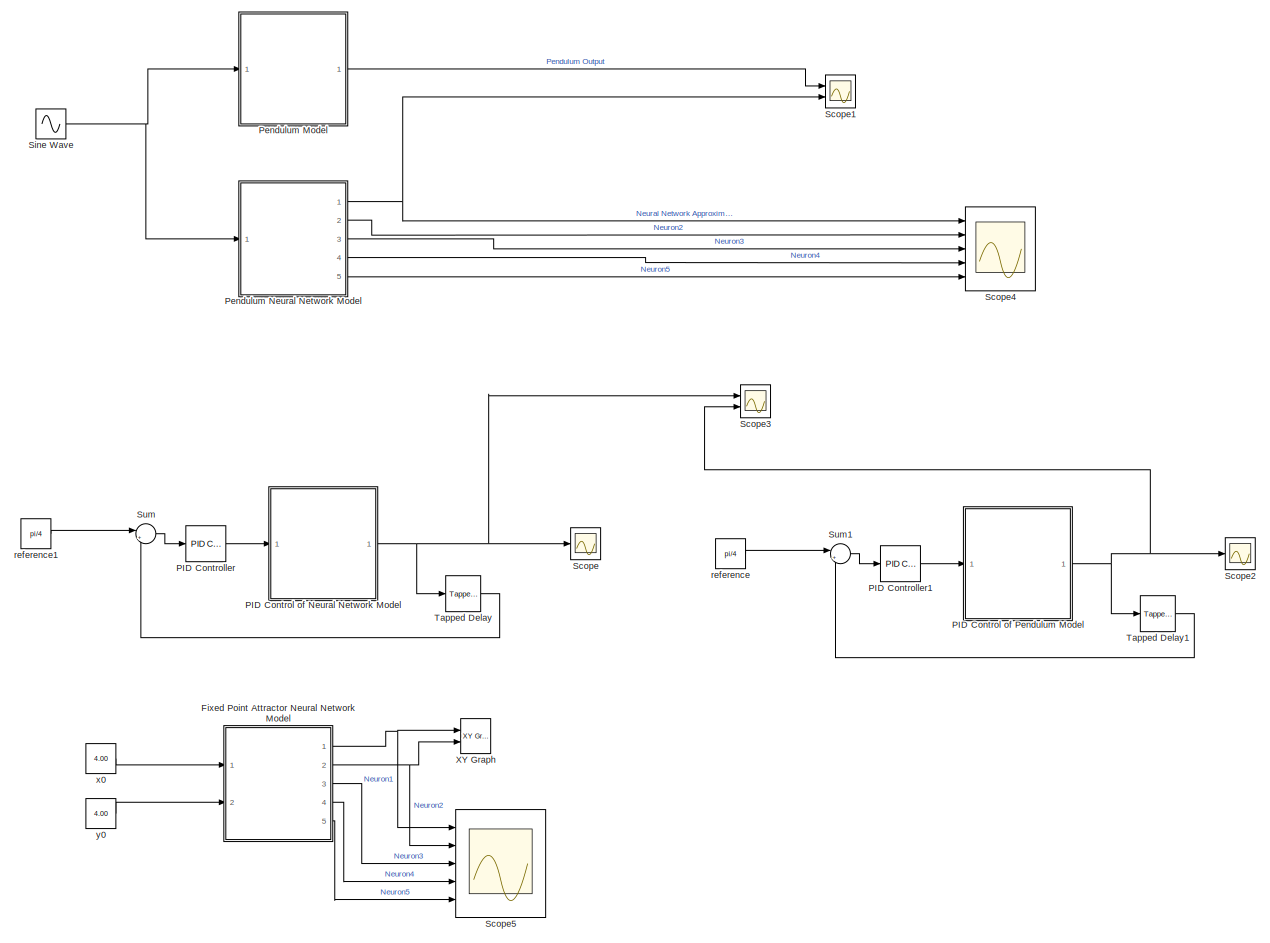
[diagram: root canvas - part 1/1, most of the canvas]
MODEL slx_5170bb41e2d5
KIND model
CONFIG AbsTol = auto
CONFIG EnableMultiTasking = off
CONFIG FixedStep = auto
CONFIG MaxStep = auto
CONFIG MinStep = auto
CONFIG RelTol = 1e-3
CONFIG SampleTimeConstraint = Unconstrained
CONFIG Solver = VariableStepAuto
CONFIG SolverName = VariableStepAuto
CONFIG StartTime = 0.0
CONFIG StopTime = 50.0
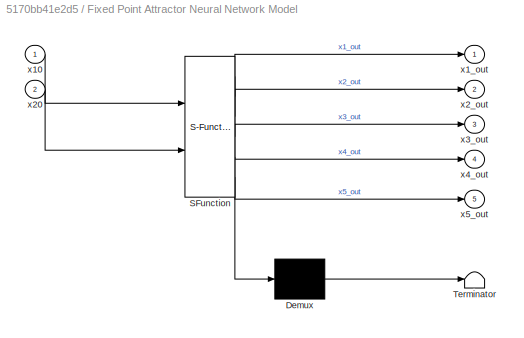
BLOCK [SubSystem] Fixed Point Attractor Neural Network Model
  ErrorFcn = Stateflow.Translate.translate
  PermitHierarchicalResolution = ExplicitOnly
  Ports = [2, 5]
  RequestExecContextInheritance = off
  SFBlockType = Chart
  TreatAsAtomicUnit = on
  Variant = off
BLOCK [Demux] Fixed Point Attractor Neural Network Model/ Demux 
  Outputs = 1
  Ports = [1, 1]
BLOCK [S-Function] Fixed Point Attractor Neural Network Model/ SFunction 
  EnableBusSupport = on
  FunctionName = sf_sfun
  PortCounts = [2 6]
  Ports = [2, 6]
  SFcnIsStateOwnerBlock = off
  SFunctionDeploymentMode = off
  Tag = Stateflow S-Function CTRNNSLSF 5
BLOCK [Terminator] Fixed Point Attractor Neural Network Model/ Terminator 
BLOCK [Inport] Fixed Point Attractor Neural Network Model/x10
  IconDisplay = Port number
BLOCK [Outport] Fixed Point Attractor Neural Network Model/x1_out
  IconDisplay = Port number
BLOCK [Inport] Fixed Point Attractor Neural Network Model/x20
  IconDisplay = Port number
  Port = 2
BLOCK [Outport] Fixed Point Attractor Neural Network Model/x2_out
  IconDisplay = Port number
  Port = 2
BLOCK [Outport] Fixed Point Attractor Neural Network Model/x3_out
  IconDisplay = Port number
  Port = 3
BLOCK [Outport] Fixed Point Attractor Neural Network Model/x4_out
  IconDisplay = Port number
  Port = 4
BLOCK [Outport] Fixed Point Attractor Neural Network Model/x5_out
  IconDisplay = Port number
  Port = 5
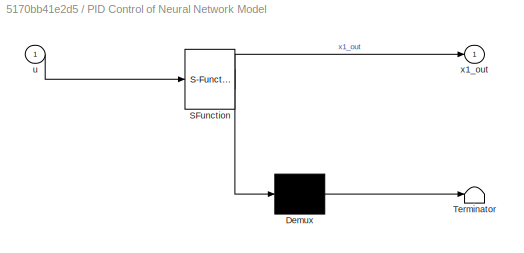
BLOCK [SubSystem] PID Control of Neural Network Model
  ErrorFcn = Stateflow.Translate.translate
  PermitHierarchicalResolution = ExplicitOnly
  Ports = [1, 1]
  RequestExecContextInheritance = off
  SFBlockType = Chart
  TreatAsAtomicUnit = on
  Variant = off
BLOCK [Demux] PID Control of Neural Network Model/ Demux 
  Outputs = 1
  Ports = [1, 1]
BLOCK [S-Function] PID Control of Neural Network Model/ SFunction 
  EnableBusSupport = on
  FunctionName = sf_sfun
  PortCounts = [1 2]
  Ports = [1, 2]
  SFcnIsStateOwnerBlock = off
  SFunctionDeploymentMode = off
  Tag = Stateflow S-Function CTRNNSLSF 3
BLOCK [Terminator] PID Control of Neural Network Model/ Terminator 
BLOCK [Inport] PID Control of Neural Network Model/u
  IconDisplay = Port number
BLOCK [Outport] PID Control of Neural Network Model/x1_out
  IconDisplay = Port number
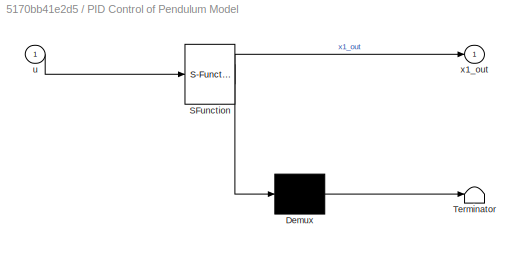
BLOCK [SubSystem] PID Control of Pendulum Model
  ErrorFcn = Stateflow.Translate.translate
  PermitHierarchicalResolution = ExplicitOnly
  Ports = [1, 1]
  RequestExecContextInheritance = off
  SFBlockType = Chart
  TreatAsAtomicUnit = on
  Variant = off
BLOCK [Demux] PID Control of Pendulum Model/ Demux 
  Outputs = 1
  Ports = [1, 1]
BLOCK [S-Function] PID Control of Pendulum Model/ SFunction 
  EnableBusSupport = on
  FunctionName = sf_sfun
  PortCounts = [1 2]
  Ports = [1, 2]
  SFcnIsStateOwnerBlock = off
  SFunctionDeploymentMode = off
  Tag = Stateflow S-Function CTRNNSLSF 4
BLOCK [Terminator] PID Control of Pendulum Model/ Terminator 
BLOCK [Inport] PID Control of Pendulum Model/u
  IconDisplay = Port number
BLOCK [Outport] PID Control of Pendulum Model/x1_out
  IconDisplay = Port number
BLOCK [Reference] PID Controller  REF=simulink/Continuous/PID Controller
  Ports = [1, 1]
  SourceBlock = simulink/Continuous/PID Controller
  SourceProductBaseCode = SL
  SourceProductName = Simulink
  SourceType = PID 1dof
BLOCK [Reference] PID Controller1  REF=simulink/Continuous/PID Controller
  Ports = [1, 1]
  SourceBlock = simulink/Continuous/PID Controller
  SourceProductBaseCode = SL
  SourceProductName = Simulink
  SourceType = PID 1dof
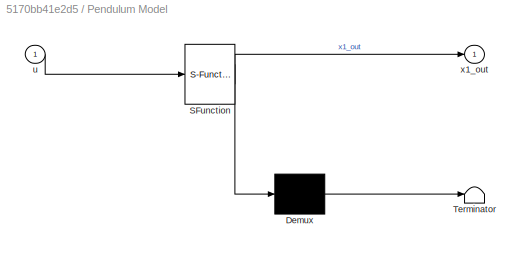
BLOCK [SubSystem] Pendulum Model
  ErrorFcn = Stateflow.Translate.translate
  PermitHierarchicalResolution = ExplicitOnly
  Ports = [1, 1]
  RequestExecContextInheritance = off
  SFBlockType = Chart
  TreatAsAtomicUnit = on
  Variant = off
BLOCK [Demux] Pendulum Model/ Demux 
  Outputs = 1
  Ports = [1, 1]
BLOCK [S-Function] Pendulum Model/ SFunction 
  EnableBusSupport = on
  FunctionName = sf_sfun
  PortCounts = [1 2]
  Ports = [1, 2]
  SFcnIsStateOwnerBlock = off
  SFunctionDeploymentMode = off
  Tag = Stateflow S-Function CTRNNSLSF 1
BLOCK [Terminator] Pendulum Model/ Terminator 
BLOCK [Inport] Pendulum Model/u
  IconDisplay = Port number
BLOCK [Outport] Pendulum Model/x1_out
  IconDisplay = Port number
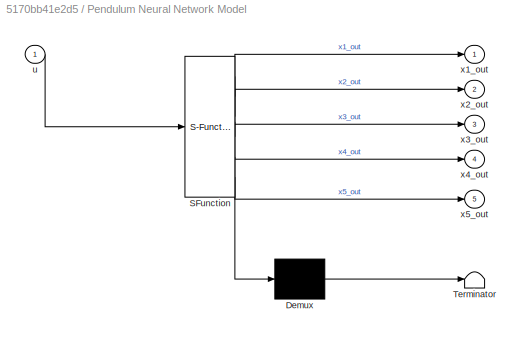
BLOCK [SubSystem] Pendulum Neural Network Model
  ErrorFcn = Stateflow.Translate.translate
  PermitHierarchicalResolution = ExplicitOnly
  Ports = [1, 5]
  RequestExecContextInheritance = off
  SFBlockType = Chart
  TreatAsAtomicUnit = on
  Variant = off
BLOCK [Demux] Pendulum Neural Network Model/ Demux 
  Outputs = 1
  Ports = [1, 1]
BLOCK [S-Function] Pendulum Neural Network Model/ SFunction 
  EnableBusSupport = on
  FunctionName = sf_sfun
  PortCounts = [1 6]
  Ports = [1, 6]
  SFcnIsStateOwnerBlock = off
  SFunctionDeploymentMode = off
  Tag = Stateflow S-Function CTRNNSLSF 2
BLOCK [Terminator] Pendulum Neural Network Model/ Terminator 
BLOCK [Inport] Pendulum Neural Network Model/u
  IconDisplay = Port number
BLOCK [Outport] Pendulum Neural Network Model/x1_out
  IconDisplay = Port number
BLOCK [Outport] Pendulum Neural Network Model/x2_out
  IconDisplay = Port number
  Port = 2
BLOCK [Outport] Pendulum Neural Network Model/x3_out
  IconDisplay = Port number
  Port = 3
BLOCK [Outport] Pendulum Neural Network Model/x4_out
  IconDisplay = Port number
  Port = 4
BLOCK [Outport] Pendulum Neural Network Model/x5_out
  IconDisplay = Port number
  Port = 5
BLOCK [Scope] Scope
  NumInputPorts = 1
  Ports = [1]
  ScopeSpecificationString = Simulink.scopes.TimeScopeBlockCfg('CurrentConfiguration', extmgr.ConfigurationSet(extmgr.Configuration('Core','General UI',true),extmgr.Configuration('Core','Source UI',true),extmgr.Configuration('Sources','WiredSimulink',true),extmgr.Configuration('Visuals','Time Domain',true,'SerializedDisplays',{struct('MinYLimReal','-0.14744','MaxYLimReal','1.22998','YLabelReal','','MinYLimMag','0.00000','MaxY...<+1341ch>
BLOCK [Scope] Scope1
  NumInputPorts = 2
  Ports = [2]
  ScopeSpecificationString = Simulink.scopes.TimeScopeBlockCfg('CurrentConfiguration', extmgr.ConfigurationSet(extmgr.Configuration('Core','General UI',true),extmgr.Configuration('Core','Source UI',true),extmgr.Configuration('Sources','WiredSimulink',true,'DataLoggingVariableName','ScopeData1'),extmgr.Configuration('Visuals','Time Domain',true,'SerializedDisplays',{struct('MinYLimReal','-0.12103','MaxYLimReal','0.12104','YLab...<+1534ch>
BLOCK [Scope] Scope2
  NumInputPorts = 1
  Ports = [1]
  ScopeSpecificationString = Simulink.scopes.TimeScopeBlockCfg('CurrentConfiguration', extmgr.ConfigurationSet(extmgr.Configuration('Core','General UI',true),extmgr.Configuration('Core','Source UI',true),extmgr.Configuration('Sources','WiredSimulink',true,'DataLoggingVariableName','ScopeData2'),extmgr.Configuration('Visuals','Time Domain',true,'SerializedDisplays',{struct('MinYLimReal','-0.11843','MaxYLimReal','1.06586','YLab...<+1403ch>
BLOCK [Scope] Scope3
  NumInputPorts = 2
  Ports = [2]
  ScopeSpecificationString = Simulink.scopes.TimeScopeBlockCfg('CurrentConfiguration', extmgr.ConfigurationSet(extmgr.Configuration('Core','General UI',true),extmgr.Configuration('Core','Source UI',true),extmgr.Configuration('Sources','WiredSimulink',true,'DataLoggingVariableName','ScopeData3'),extmgr.Configuration('Visuals','Time Domain',true,'SerializedDisplays',{struct('MinYLimReal','-0.14744','MaxYLimReal','1.22998','YLab...<+1425ch>
BLOCK [Scope] Scope4
  NumInputPorts = 5
  Ports = [5]
  ScopeSpecificationString = Simulink.scopes.TimeScopeBlockCfg('CurrentConfiguration', extmgr.ConfigurationSet(extmgr.Configuration('Core','General UI',true),extmgr.Configuration('Core','Source UI',true),extmgr.Configuration('Sources','WiredSimulink',true,'DataLoggingVariableName','ScopeData1'),extmgr.Configuration('Visuals','Time Domain',true,'SerializedDisplays',{struct('MinYLimReal','-0.18379','MaxYLimReal','0.18881','YLab...<+1505ch>
BLOCK [Scope] Scope5
  NumInputPorts = 5
  Ports = [5]
  ScopeSpecificationString = Simulink.scopes.TimeScopeBlockCfg('CurrentConfiguration', extmgr.ConfigurationSet(extmgr.Configuration('Core','General UI',true),extmgr.Configuration('Core','Source UI',true),extmgr.Configuration('Sources','WiredSimulink',true,'DataLoggingVariableName','ScopeData1'),extmgr.Configuration('Visuals','Time Domain',true,'SerializedDisplays',{struct('MinYLimReal','-6.1573','MaxYLimReal','5.61562','YLabe...<+1429ch>
BLOCK [Sin] Sine Wave
  Amplitude = pi/2
  Frequency = (2*pi)/12.5
  Ports = [0, 1]
  SampleTime = 0
BLOCK [Sum] Sum
  IconShape = round
  InputSameDT = off
  Inputs = |+-
  OutDataTypeStr = Inherit: Inherit via internal rule
  Ports = [2, 1]
  SaturateOnIntegerOverflow = off
BLOCK [Sum] Sum1
  IconShape = round
  InputSameDT = off
  Inputs = |+-
  OutDataTypeStr = Inherit: Inherit via internal rule
  Ports = [2, 1]
  SaturateOnIntegerOverflow = off
BLOCK [Reference] Tapped Delay  REF=simulink/Discrete/Tapped Delay
  Ports = [1, 1]
  SourceBlock = simulink/Discrete/Tapped Delay
  SourceProductBaseCode = SL
  SourceProductName = Simulink
  SourceType = Tapped Delay Line
BLOCK [Reference] Tapped Delay1  REF=simulink/Discrete/Tapped Delay
  Ports = [1, 1]
  SourceBlock = simulink/Discrete/Tapped Delay
  SourceProductBaseCode = SL
  SourceProductName = Simulink
  SourceType = Tapped Delay Line
BLOCK [Reference] XY Graph  REF=simulink/Sinks/XY Graph
  Ports = [2]
  SourceBlock = simulink/Sinks/XY Graph
  SourceProductBaseCode = SL
  SourceProductName = Simulink
  SourceType = XY scope.
BLOCK [Constant] reference
  Value = pi/4
BLOCK [Constant] reference1
  Value = pi/4
BLOCK [Constant] x0
  Value = 4.00
BLOCK [Constant] y0
  Value = 4.00
NET Fixed Point Attractor Neural Network Model:1 -> Scope5:1, XY Graph:1
NET Fixed Point Attractor Neural Network Model:2 -> Scope5:2, XY Graph:2
LINE Fixed Point Attractor Neural Network Model:3 -> Scope5:3
LINE Fixed Point Attractor Neural Network Model:4 -> Scope5:4
LINE Fixed Point Attractor Neural Network Model:5 -> Scope5:5
NET PID Control of Neural Network Model:1 -> Scope3:1, Scope:1, Tapped Delay:1
NET PID Control of Pendulum Model:1 -> Scope2:1, Scope3:2, Tapped Delay1:1
LINE PID Controller1:1 -> PID Control of Pendulum Model:1
LINE PID Controller:1 -> PID Control of Neural Network Model:1
LINE Pendulum Model:1 -> Scope1:1
NET Pendulum Neural Network Model:1 -> Scope1:2, Scope4:1
LINE Pendulum Neural Network Model:2 -> Scope4:2
LINE Pendulum Neural Network Model:3 -> Scope4:3
LINE Pendulum Neural Network Model:4 -> Scope4:4
LINE Pendulum Neural Network Model:5 -> Scope4:5
NET Sine Wave:1 -> Pendulum Model:1, Pendulum Neural Network Model:1
LINE Sum1:1 -> PID Controller1:1
LINE Sum:1 -> PID Controller:1
LINE Tapped Delay1:1 -> Sum1:2
LINE Tapped Delay:1 -> Sum:2
LINE reference1:1 -> Sum:1
LINE reference:1 -> Sum1:1
LINE x0:1 -> Fixed Point Attractor Neural Network Model:1
LINE y0:1 -> Fixed Point Attractor Neural Network Model:2
note: NET lines group one-source signal fan-out (src -> all destinations, sorted); 1:1 wires keep LINE
CHART Pendulum Model states=1 transitions=1
  STATE_LABEL 'Pendulum\ndu:\n  % derivatives\n  x1_dot = x2;\n  x2_dot = -9.81*x1-0.5*x2+0.5*u;\n  % outputs\n  x1_out = x1;'
CHART Pendulum Neural Network Model states=1 transitions=1
  STATE_LABEL 'DFPRNN\ndu:\n  % derivatives\n  x1_dot=-x1+0.4684*tanh(x1)-2.4995*tanh(x2) +0.4211*tanh(x3) -0.2848*tanh(x4) +0.1995*tanh(x5)+0.0050*u;\n  x2_dot=-x2+1.3615*tanh(x1)+0.0642*tanh(x2) + 0.0413*tanh(x3) - 1.8925*tanh(x4) - 1.6608*tanh(x5)-0.2111*u;\n  x3_dot=-x3-0.8185*tanh(x1)-0.9241*tanh(x2)-0.0743*tanh(x3) -0.1264*tanh(x4) +0.1484*tanh(x5)+0.1689*u;\n  x4_dot=-x4-0.3257*tanh(x1)+1.2319*tanh(x2)-1.0997*t...<+242ch>'
CHART PID Control of Neural Network Model states=1 transitions=1
  STATE_LABEL 'Falling\ndu:\n  % derivatives\n  x1_dot=-x1+0.4684*tanh(x1)-2.4995*tanh(x2) +0.4211*tanh(x3) -0.2848*tanh(x4) +0.1995*tanh(x5)+0.0050*u;\n  x2_dot=-x2+1.3615*tanh(x1)+0.0642*tanh(x2) + 0.0413*tanh(x3) - 1.8925*tanh(x4) - 1.6608*tanh(x5)-0.2111*u;\n  x3_dot=-x3-0.8185*tanh(x1)-0.9241*tanh(x2)-0.0743*tanh(x3) -0.1264*tanh(x4) +0.1484*tanh(x5)+0.1689*u;\n  x4_dot=-x4-0.3257*tanh(x1)+1.2319*tanh(x2)-1.0997*...<+190ch>'
CHART PID Control of Pendulum Model states=1 transitions=1
  STATE_LABEL 'Falling\ndu:\n  % derivatives\n  x1_dot = x2;\n  x2_dot = -9.81*x1-0.5*x2+0.5*u;\n  % outputs\n  x1_out = x1;'
CHART Fixed Point Attractor Neural Network Model states=1 transitions=1
  STATE_LABEL 'Falling\ndu:\n  % derivatives\n  x1_dot=-(10^-6)*x1 -1.2033*tanh(x3) -0.0720*tanh(x4) -0.9364*tanh(x5);\n  x2_dot=-(10^-6)*x2+ 1.1881*tanh(x3) - 1.5002*tanh(x4) +0.9352*tanh(x5);\n  x3_dot=-(10^-6)*x3-1.5863*tanh(x3) +0.0701*tanh(x4) -1.2355*tanh(x5);\n  x4_dot=-(10^-6)*x4+0.0857*tanh(x3) -0.2995*tanh(x4) +0.0687*tanh(x5);\n  x5_dot=-(10^-6)*x5+1.7898*tanh(x3) - 0.0846*tanh(x4) + 1.3940*tanh(x5);\n  % out...<+79ch>'
